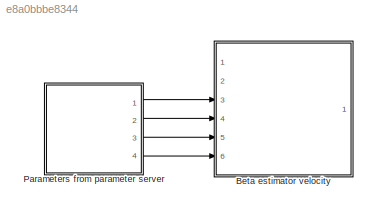
MODEL slx_e8a0bbbe8344
KIND model
CONFIG AbsTol = auto
CONFIG EnableMultiTasking = off
CONFIG FixedStep = auto
CONFIG MaxStep = auto
CONFIG MinStep = auto
CONFIG RelTol = 1e-3
CONFIG SampleTimeConstraint = Unconstrained
CONFIG Solver = VariableStepAuto
CONFIG SolverName = VariableStepAuto
CONFIG StartTime = 0.0
CONFIG StopTime = 10.0
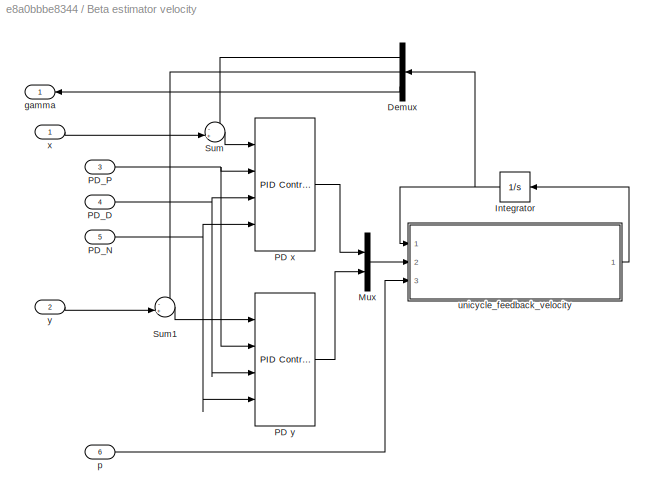
BLOCK [SubSystem] Beta estimator velocity
  Ports = [6, 1]
  RequestExecContextInheritance = off
  Variant = off
BLOCK [Demux] Beta estimator velocity/Demux
  DisplayOption = bar
  Outputs = 3
  Ports = [1, 3]
BLOCK [Integrator] Beta estimator velocity/Integrator
  Ports = [1, 1]
BLOCK [Mux] Beta estimator velocity/Mux
  DisplayOption = bar
  Inputs = 2
  Ports = [2, 1]
BLOCK [Reference] Beta estimator velocity/PD x  REF=simulink/Continuous/PID Controller
  Ports = [4, 1]
  SourceBlock = simulink/Continuous/PID Controller
  SourceProductBaseCode = SL
  SourceProductName = Simulink
  SourceType = PID 1dof
BLOCK [Reference] Beta estimator velocity/PD y  REF=simulink/Continuous/PID Controller
  Ports = [4, 1]
  SourceBlock = simulink/Continuous/PID Controller
  SourceProductBaseCode = SL
  SourceProductName = Simulink
  SourceType = PID 1dof
BLOCK [Inport] Beta estimator velocity/PD_D
  IconDisplay = Port number
  Port = 4
BLOCK [Inport] Beta estimator velocity/PD_N
  IconDisplay = Port number
  Port = 5
BLOCK [Inport] Beta estimator velocity/PD_P
  IconDisplay = Port number
  Port = 3
BLOCK [Sum] Beta estimator velocity/Sum
  IconShape = round
  InputSameDT = off
  Inputs = -+|
  OutDataTypeStr = Inherit: Inherit via internal rule
  Ports = [2, 1]
  SaturateOnIntegerOverflow = off
BLOCK [Sum] Beta estimator velocity/Sum1
  IconShape = round
  InputSameDT = off
  Inputs = -+|
  OutDataTypeStr = Inherit: Inherit via internal rule
  Ports = [2, 1]
  SaturateOnIntegerOverflow = off
BLOCK [Outport] Beta estimator velocity/gamma
  IconDisplay = Port number
BLOCK [Inport] Beta estimator velocity/p
  IconDisplay = Port number
  Port = 6
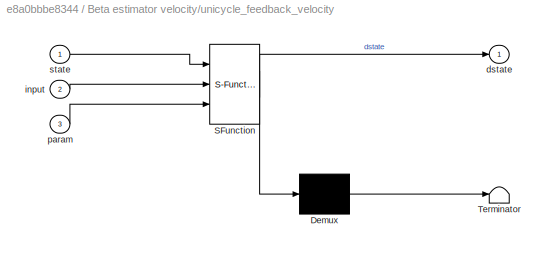
BLOCK [SubSystem] Beta estimator velocity/unicycle_feedback_velocity
  ErrorFcn = Stateflow.Translate.translate
  PermitHierarchicalResolution = ExplicitOnly
  Ports = [3, 1]
  RequestExecContextInheritance = off
  SFBlockType = MATLAB Function
  TreatAsAtomicUnit = on
  Variant = off
BLOCK [Demux] Beta estimator velocity/unicycle_feedback_velocity/ Demux 
  Outputs = 1
  Ports = [1, 1]
BLOCK [S-Function] Beta estimator velocity/unicycle_feedback_velocity/ SFunction 
  EnableBusSupport = off
  FunctionName = sf_sfun
  PortCounts = [3 2]
  Ports = [3, 2]
  SFcnIsStateOwnerBlock = off
  SFunctionDeploymentMode = off
  Tag = Stateflow S-Function beta_estimator_velocity 1
BLOCK [Terminator] Beta estimator velocity/unicycle_feedback_velocity/ Terminator 
BLOCK [Outport] Beta estimator velocity/unicycle_feedback_velocity/dstate
  IconDisplay = Port number
BLOCK [Inport] Beta estimator velocity/unicycle_feedback_velocity/input
  IconDisplay = Port number
  Port = 2
BLOCK [Inport] Beta estimator velocity/unicycle_feedback_velocity/param
  IconDisplay = Port number
  Port = 3
BLOCK [Inport] Beta estimator velocity/unicycle_feedback_velocity/state
  IconDisplay = Port number
BLOCK [Inport] Beta estimator velocity/x
  IconDisplay = Port number
BLOCK [Inport] Beta estimator velocity/y
  IconDisplay = Port number
  Port = 2
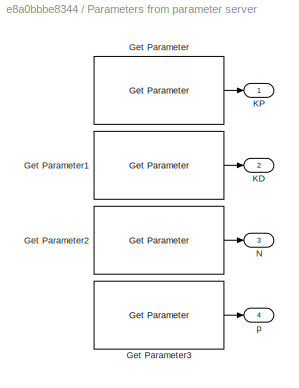
BLOCK [SubSystem] Parameters from parameter server
  Ports = [0, 4]
  RequestExecContextInheritance = off
  Variant = off
BLOCK [Reference] Parameters from parameter server/Get Parameter  REF=robotlib/Get Parameter
  Ports = [0, 1]
  SourceBlock = robotlib/Get Parameter
  SourceLibraryInfo = This block requires Robotics System Toolbox
  SourceProductBaseCode = RO
  SourceProductName = Robotics System Toolbox
  SourceType = ROS Get Parameter
BLOCK [Reference] Parameters from parameter server/Get Parameter1  REF=robotlib/Get Parameter
  Ports = [0, 1]
  SourceBlock = robotlib/Get Parameter
  SourceLibraryInfo = This block requires Robotics System Toolbox
  SourceProductBaseCode = RO
  SourceProductName = Robotics System Toolbox
  SourceType = ROS Get Parameter
BLOCK [Reference] Parameters from parameter server/Get Parameter2  REF=robotlib/Get Parameter
  Ports = [0, 1]
  SourceBlock = robotlib/Get Parameter
  SourceLibraryInfo = This block requires Robotics System Toolbox
  SourceProductBaseCode = RO
  SourceProductName = Robotics System Toolbox
  SourceType = ROS Get Parameter
BLOCK [Reference] Parameters from parameter server/Get Parameter3  REF=robotlib/Get Parameter
  Ports = [0, 1]
  SourceBlock = robotlib/Get Parameter
  SourceLibraryInfo = This block requires Robotics System Toolbox
  SourceProductBaseCode = RO
  SourceProductName = Robotics System Toolbox
  SourceType = ROS Get Parameter
BLOCK [Outport] Parameters from parameter server/KD
  IconDisplay = Port number
  Port = 2
BLOCK [Outport] Parameters from parameter server/KP
  IconDisplay = Port number
BLOCK [Outport] Parameters from parameter server/N
  IconDisplay = Port number
  Port = 3
BLOCK [Outport] Parameters from parameter server/p
  IconDisplay = Port number
  Port = 4
LINE Beta estimator velocity/Demux:1 -> Beta estimator velocity/Sum:1
LINE Beta estimator velocity/Demux:2 -> Beta estimator velocity/Sum1:1
LINE Beta estimator velocity/Demux:3 -> Beta estimator velocity/gamma:1
NET Beta estimator velocity/Integrator:1 -> Beta estimator velocity/Demux:1, Beta estimator velocity/unicycle_feedback_velocity:1
LINE Beta estimator velocity/Mux:1 -> Beta estimator velocity/unicycle_feedback_velocity:2
LINE Beta estimator velocity/PD x:1 -> Beta estimator velocity/Mux:1
LINE Beta estimator velocity/PD y:1 -> Beta estimator velocity/Mux:2
NET Beta estimator velocity/PD_D:1 -> Beta estimator velocity/PD x:3, Beta estimator velocity/PD y:3
NET Beta estimator velocity/PD_N:1 -> Beta estimator velocity/PD x:4, Beta estimator velocity/PD y:4
NET Beta estimator velocity/PD_P:1 -> Beta estimator velocity/PD x:2, Beta estimator velocity/PD y:2
LINE Beta estimator velocity/Sum1:1 -> Beta estimator velocity/PD y:1
LINE Beta estimator velocity/Sum:1 -> Beta estimator velocity/PD x:1
LINE Beta estimator velocity/p:1 -> Beta estimator velocity/unicycle_feedback_velocity:3
LINE Beta estimator velocity/unicycle_feedback_velocity:1 -> Beta estimator velocity/Integrator:1
LINE Beta estimator velocity/x:1 -> Beta estimator velocity/Sum:2
LINE Beta estimator velocity/y:1 -> Beta estimator velocity/Sum1:2
LINE Parameters from parameter server/Get Parameter1:1 -> Parameters from parameter server/KD:1
LINE Parameters from parameter server/Get Parameter2:1 -> Parameters from parameter server/N:1
LINE Parameters from parameter server/Get Parameter3:1 -> Parameters from parameter server/p:1
LINE Parameters from parameter server/Get Parameter:1 -> Parameters from parameter server/KP:1
LINE Parameters from parameter server:1 -> Beta estimator velocity:3
LINE Parameters from parameter server:2 -> Beta estimator velocity:4
LINE Parameters from parameter server:3 -> Beta estimator velocity:5
LINE Parameters from parameter server:4 -> Beta estimator velocity:6
note: NET lines group one-source signal fan-out (src -> all destinations, sorted); 1:1 wires keep LINE
CHART Beta estimator velocity/unicycle_feedback_velocity states=1 transitions=1
  STATE_LABEL 'eML_blk_kernel()'
  STATE_LABEL 'SCRIPT:\nfunction dstate = unicycle_feedback_velocity(state,input,param)\n\n% State and input variables\nx     = state(1);\ny     = state(1);\ngamma = state(3); % theta+beta\nvxp   = input(1);\nvyp   = input(2);\n\n% Parameters\np = param(1);\n\n% Model equations\ndstate = zeros(3,1);\ndstate(1) = vxp*cos(gamma)^2+vyp*sin(gamma)*cos(gamma);\ndstate(2) = vxp*sin(gamma)*cos(gamma)+vyp*sin(gamma)^2;\ndstate(3) = (vyp...<+32ch>'
